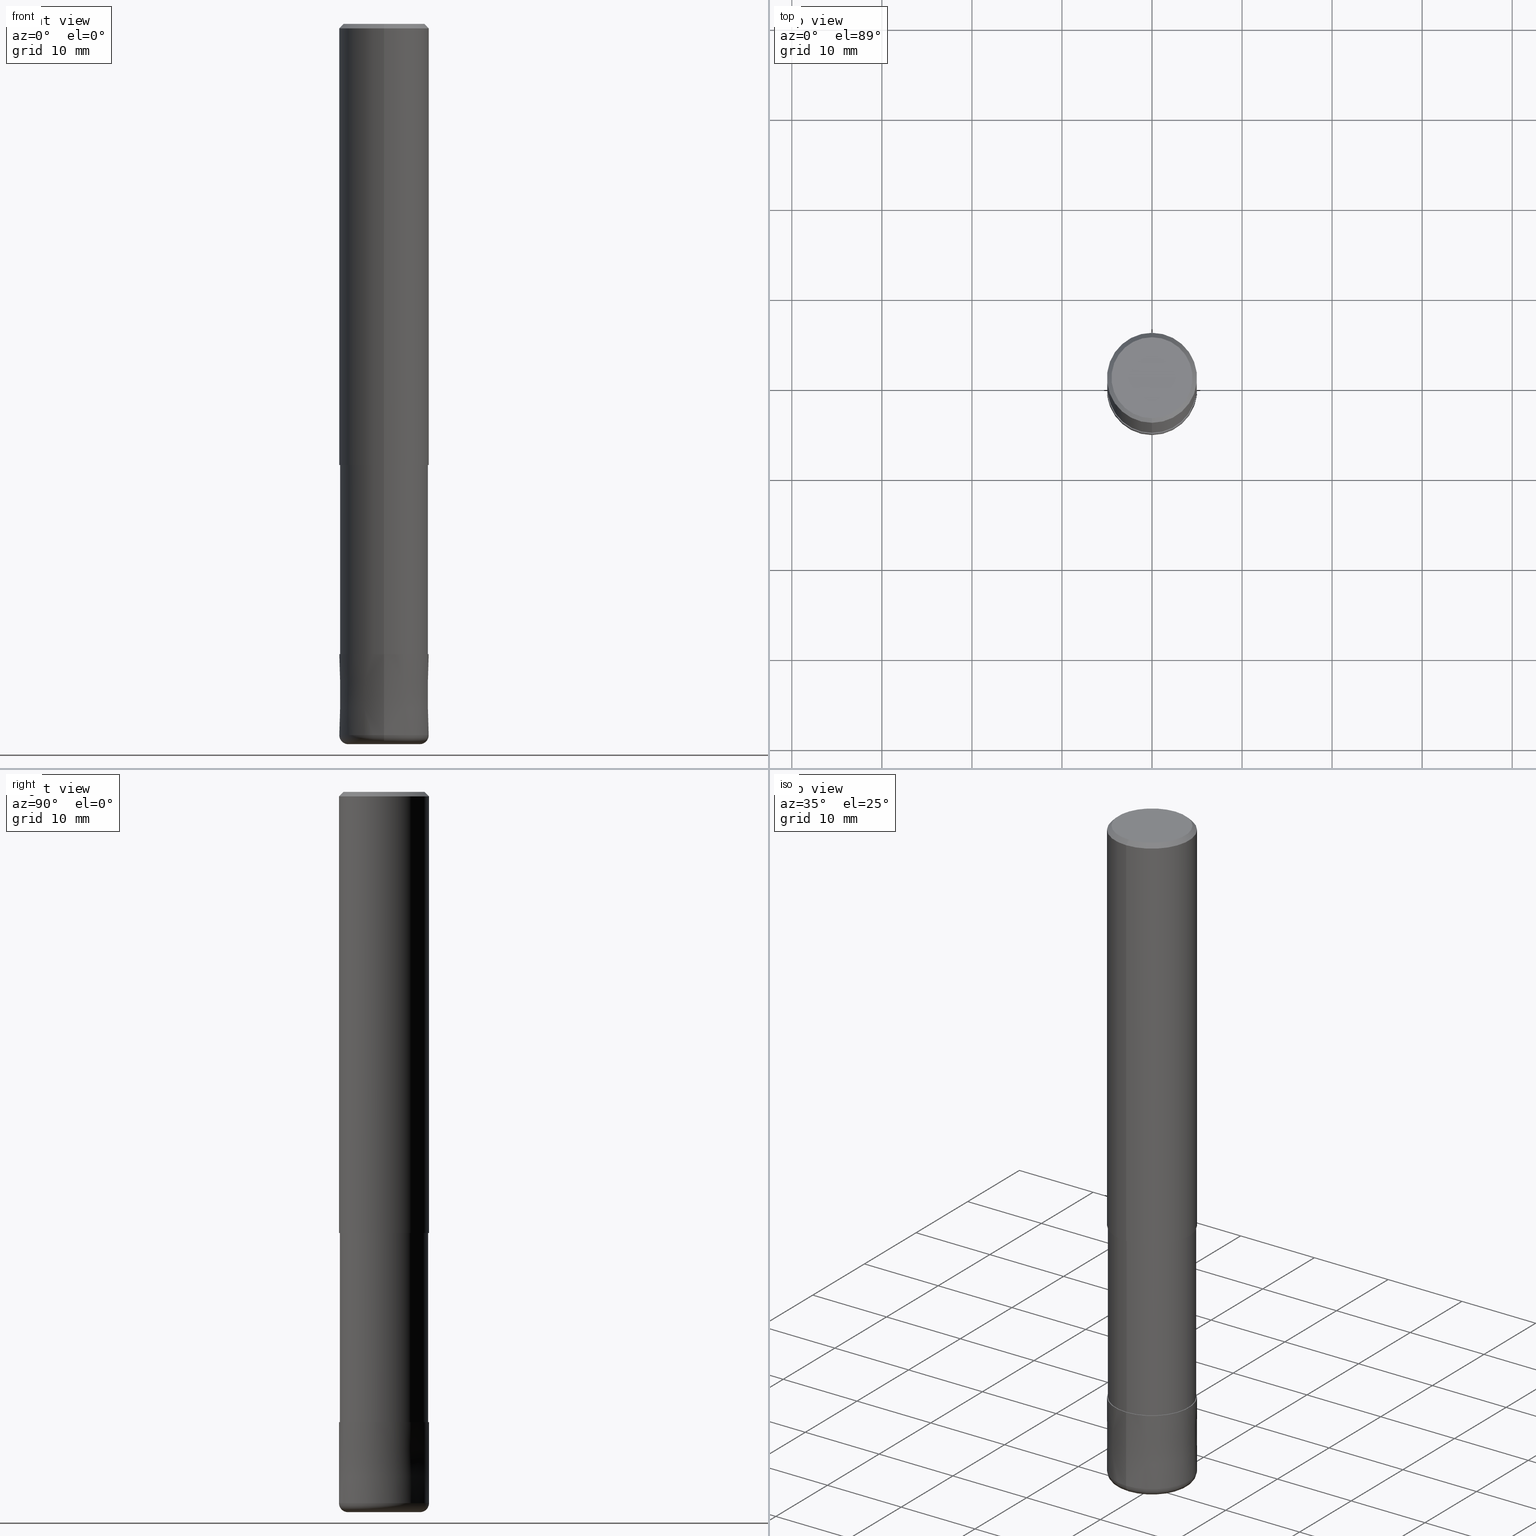
[diagram: canonical four-view strip — front | top / right | iso, engineering-drawing reading convention]
A machine part, canonical four-view strip (front | top / right | iso — engineering-drawing reading convention). The complete STEP part file that produces these views, byte-faithful:
ISO-10303-21;
HEADER;
FILE_DESCRIPTION(('no description'),'unknown implementation level');
FILE_NAME('HHRS6100-10-310-Huellk.stp','  ',('CIMSOURCE GmbH'),('CADClick - KiM GmbH - www.kimweb.de'),'unknown preprocess','ACIS','unknown authorization');
FILE_SCHEMA(('automotive_design'));
ENDSEC;
DATA;
#1=MECHANICAL_DESIGN_GEOMETRIC_PRESENTATION_REPRESENTATION(' ',(#14,#15,#16,#17,#18,#19,#20,#21,#22,#23,#24,#25,#26,#27,#28,#29,#30,#31,#32,#33,#34,#35,#36,#37,#38,#39,#40,#41,#42,#43,#44,#45,#46,#47,#48,#49,#50,#51,#52,#53,#54,#55,#56,#57,#58,#59,#60,#61,#62,#63,#64,#65,#66,#67,#68,#69,#70,#71,#72,#73,#74,#75,#76,#77,#78,#79,#80,#81,#82,#83,#84,#85,#86,#87,#88,#89,#90,#91,#92,#93,#94,#95,#96,#97),#10);
#2=PRODUCT_DEFINITION_CONTEXT('',#98,'design');
#3=APPLICATION_PROTOCOL_DEFINITION('INTERNATIONAL STANDARD','automotive_design',1994,#98);
#4=PRODUCT_CATEGORY_RELATIONSHIP('NONE','NONE',#99,#100);
#5=SHAPE_DEFINITION_REPRESENTATION(#101,#102);
#6=PRODUCT_DEFINITION_CONTEXT('',#103,'design');
#7=APPLICATION_PROTOCOL_DEFINITION('INTERNATIONAL STANDARD','automotive_design',1994,#103);
#8=PRODUCT_CATEGORY_RELATIONSHIP('NONE','NONE',#104,#105);
#9=SHAPE_DEFINITION_REPRESENTATION(#106,#107);
#10= (GEOMETRIC_REPRESENTATION_CONTEXT(3)GLOBAL_UNCERTAINTY_ASSIGNED_CONTEXT((#110))GLOBAL_UNIT_ASSIGNED_CONTEXT((#112,#113,#114))REPRESENTATION_CONTEXT('NONE','WORKSPACE'));
#14=STYLED_ITEM('',(#116),#117);
#15=STYLED_ITEM('',(#118),#119);
#16=STYLED_ITEM('',(#120),#121);
#17=STYLED_ITEM('',(#122),#123);
#18=STYLED_ITEM('',(#124),#125);
#19=STYLED_ITEM('',(#126),#127);
#20=STYLED_ITEM('',(#128),#129);
#21=STYLED_ITEM('',(#130),#131);
#22=STYLED_ITEM('',(#132),#133);
#23=STYLED_ITEM('',(#134),#135);
#24=STYLED_ITEM('',(#136),#137);
#25=STYLED_ITEM('',(#138),#139);
#26=STYLED_ITEM('',(#140),#141);
#27=STYLED_ITEM('',(#142),#143);
#28=STYLED_ITEM('',(#144),#145);
#29=STYLED_ITEM('',(#146),#147);
#30=STYLED_ITEM('',(#148),#149);
#31=STYLED_ITEM('',(#150),#151);
#32=STYLED_ITEM('',(#152),#153);
#33=STYLED_ITEM('',(#154),#155);
#34=STYLED_ITEM('',(#156),#157);
#35=STYLED_ITEM('',(#158),#159);
#36=STYLED_ITEM('',(#160),#161);
#37=STYLED_ITEM('',(#162),#163);
#38=STYLED_ITEM('',(#164),#165);
#39=STYLED_ITEM('',(#166),#167);
#40=STYLED_ITEM('',(#168),#169);
#41=STYLED_ITEM('',(#170),#171);
#42=STYLED_ITEM('',(#172),#173);
#43=STYLED_ITEM('',(#174),#175);
#44=STYLED_ITEM('',(#176),#177);
#45=STYLED_ITEM('',(#178),#179);
#46=STYLED_ITEM('',(#180),#181);
#47=STYLED_ITEM('',(#182),#183);
#48=STYLED_ITEM('',(#184),#185);
#49=STYLED_ITEM('',(#186),#187);
#50=STYLED_ITEM('',(#188),#189);
#51=STYLED_ITEM('',(#190),#191);
#52=STYLED_ITEM('',(#192),#193);
#53=STYLED_ITEM('',(#194),#195);
#54=STYLED_ITEM('',(#196),#197);
#55=STYLED_ITEM('',(#198),#199);
#56=STYLED_ITEM('',(#200),#201);
#57=STYLED_ITEM('',(#202),#203);
#58=STYLED_ITEM('',(#204),#205);
#59=STYLED_ITEM('',(#206),#207);
#60=STYLED_ITEM('',(#208),#209);
#61=STYLED_ITEM('',(#210),#211);
#62=STYLED_ITEM('',(#212),#213);
#63=STYLED_ITEM('',(#214),#215);
#64=STYLED_ITEM('',(#216),#217);
#65=STYLED_ITEM('',(#218),#219);
#66=STYLED_ITEM('',(#220),#221);
#67=STYLED_ITEM('',(#222),#223);
#68=STYLED_ITEM('',(#224),#225);
#69=STYLED_ITEM('',(#226),#227);
#70=STYLED_ITEM('',(#228),#229);
#71=STYLED_ITEM('',(#230),#231);
#72=STYLED_ITEM('',(#232),#233);
#73=STYLED_ITEM('',(#234),#235);
#74=STYLED_ITEM('',(#236),#237);
#75=STYLED_ITEM('',(#238),#239);
#76=STYLED_ITEM('',(#240),#241);
#77=STYLED_ITEM('',(#242),#243);
#78=STYLED_ITEM('',(#244),#245);
#79=STYLED_ITEM('',(#246),#247);
#80=STYLED_ITEM('',(#248),#249);
#81=STYLED_ITEM('',(#250),#251);
#82=STYLED_ITEM('',(#252),#253);
#83=STYLED_ITEM('',(#254),#255);
#84=STYLED_ITEM('',(#256),#257);
#85=STYLED_ITEM('',(#258),#259);
#86=STYLED_ITEM('',(#260),#261);
#87=STYLED_ITEM('',(#262),#263);
#88=STYLED_ITEM('',(#264),#265);
#89=STYLED_ITEM('',(#266),#267);
#90=STYLED_ITEM('',(#268),#269);
#91=STYLED_ITEM('',(#270),#271);
#92=STYLED_ITEM('',(#272),#273);
#93=STYLED_ITEM('',(#274),#275);
#94=STYLED_ITEM('',(#276),#277);
#95=STYLED_ITEM('',(#278),#279);
#96=STYLED_ITEM('',(#280),#281);
#97=STYLED_ITEM('',(#282),#283);
#98=APPLICATION_CONTEXT(' ');
#99=PRODUCT_CATEGORY('part','NONE');
#100=PRODUCT_RELATED_PRODUCT_CATEGORY('detail',' ',(#284));
#101=PRODUCT_DEFINITION_SHAPE('NONE','NONE',#285);
#102=ADVANCED_BREP_SHAPE_REPRESENTATION('1',(#273,#286),#10);
#103=APPLICATION_CONTEXT(' ');
#104=PRODUCT_CATEGORY('part','NONE');
#105=PRODUCT_RELATED_PRODUCT_CATEGORY('detail',' ',(#287));
#106=PRODUCT_DEFINITION_SHAPE('NONE','NONE',#288);
#107=ADVANCED_BREP_SHAPE_REPRESENTATION('2',(#221,#289),#10);
#110=UNCERTAINTY_MEASURE_WITH_UNIT(LENGTH_MEASURE(1.0E-006),#112,'','');
#112= (CONVERSION_BASED_UNIT('MILLIMETRE',#292)LENGTH_UNIT()NAMED_UNIT(#295));
#113= (NAMED_UNIT(#297)PLANE_ANGLE_UNIT()SI_UNIT($,.RADIAN.));
#114= (NAMED_UNIT(#297)SOLID_ANGLE_UNIT()SI_UNIT($,.STERADIAN.));
#116=PRESENTATION_STYLE_ASSIGNMENT((#303));
#117=EDGE_CURVE('',#225,#193,#304,.T.);
#118=PRESENTATION_STYLE_ASSIGNMENT((#305));
#119=EDGE_CURVE('',#207,#227,#306,.T.);
#120=PRESENTATION_STYLE_ASSIGNMENT((#307));
#121=VERTEX_POINT('',#308);
#122=PRESENTATION_STYLE_ASSIGNMENT((#309));
#123=ADVANCED_FACE('',(#310),#311,.T.);
#124=PRESENTATION_STYLE_ASSIGNMENT((#312));
#125=ADVANCED_FACE('',(#313),#314,.T.);
#126=PRESENTATION_STYLE_ASSIGNMENT((#315));
#127=VERTEX_POINT('',#316);
#128=PRESENTATION_STYLE_ASSIGNMENT((#317));
#129=EDGE_CURVE('',#161,#127,#318,.T.);
#130=PRESENTATION_STYLE_ASSIGNMENT((#319));
#131=EDGE_CURVE('',#231,#167,#320,.T.);
#132=PRESENTATION_STYLE_ASSIGNMENT((#321));
#133=VERTEX_POINT('',#322);
#134=PRESENTATION_STYLE_ASSIGNMENT((#323));
#135=ADVANCED_FACE('',(#324),#325,.T.);
#136=PRESENTATION_STYLE_ASSIGNMENT((#326));
#137=ADVANCED_FACE('',(#327),#328,.T.);
#138=PRESENTATION_STYLE_ASSIGNMENT((#329));
#139=EDGE_CURVE('',#193,#225,#330,.T.);
#140=PRESENTATION_STYLE_ASSIGNMENT((#331));
#141=EDGE_CURVE('',#277,#265,#332,.T.);
#142=PRESENTATION_STYLE_ASSIGNMENT((#333));
#143=EDGE_CURVE('',#241,#271,#334,.T.);
#144=PRESENTATION_STYLE_ASSIGNMENT((#335));
#145=ADVANCED_FACE('',(#336,#337),#338,.T.);
#146=PRESENTATION_STYLE_ASSIGNMENT((#339));
#147=EDGE_CURVE('',#155,#263,#340,.T.);
#148=PRESENTATION_STYLE_ASSIGNMENT((#341));
#149=EDGE_CURVE('',#255,#265,#342,.T.);
#150=PRESENTATION_STYLE_ASSIGNMENT((#343));
#151=ADVANCED_FACE('',(#344),#345,.T.);
#152=PRESENTATION_STYLE_ASSIGNMENT((#346));
#153=EDGE_CURVE('',#225,#205,#347,.T.);
#154=PRESENTATION_STYLE_ASSIGNMENT((#348));
#155=VERTEX_POINT('',#349);
#156=PRESENTATION_STYLE_ASSIGNMENT((#350));
#157=ADVANCED_FACE('',(#351),#352,.F.);
#158=PRESENTATION_STYLE_ASSIGNMENT((#353));
#159=ADVANCED_FACE('',(#354),#355,.T.);
#160=PRESENTATION_STYLE_ASSIGNMENT((#356));
#161=VERTEX_POINT('',#357);
#162=PRESENTATION_STYLE_ASSIGNMENT((#358));
#163=ADVANCED_FACE('',(#359),#360,.T.);
#164=PRESENTATION_STYLE_ASSIGNMENT((#361));
#165=EDGE_CURVE('',#209,#121,#362,.T.);
#166=PRESENTATION_STYLE_ASSIGNMENT((#363));
#167=VERTEX_POINT('',#364);
#168=PRESENTATION_STYLE_ASSIGNMENT((#365));
#169=ADVANCED_FACE('',(#366),#367,.T.);
#170=PRESENTATION_STYLE_ASSIGNMENT((#368));
#171=EDGE_CURVE('',#167,#231,#369,.T.);
#172=PRESENTATION_STYLE_ASSIGNMENT((#370));
#173=EDGE_CURVE('',#227,#207,#371,.T.);
#174=PRESENTATION_STYLE_ASSIGNMENT((#372));
#175=EDGE_CURVE('',#263,#155,#373,.T.);
#176=PRESENTATION_STYLE_ASSIGNMENT((#374));
#177=EDGE_CURVE('',#271,#185,#375,.T.);
#178=PRESENTATION_STYLE_ASSIGNMENT((#376));
#179=VERTEX_POINT('',#377);
#180=PRESENTATION_STYLE_ASSIGNMENT((#378));
#181=EDGE_CURVE('',#179,#185,#379,.T.);
#182=PRESENTATION_STYLE_ASSIGNMENT((#380));
#183=EDGE_CURVE('',#253,#269,#381,.T.);
#184=PRESENTATION_STYLE_ASSIGNMENT((#382));
#185=VERTEX_POINT('',#383);
#186=PRESENTATION_STYLE_ASSIGNMENT((#384));
#187=EDGE_CURVE('',#207,#155,#385,.T.);
#188=PRESENTATION_STYLE_ASSIGNMENT((#386));
#189=ADVANCED_FACE('',(#387,#388),#389,.T.);
#190=PRESENTATION_STYLE_ASSIGNMENT((#390));
#191=ADVANCED_FACE('',(#391,#392),#393,.T.);
#192=PRESENTATION_STYLE_ASSIGNMENT((#394));
#193=VERTEX_POINT('',#395);
#194=PRESENTATION_STYLE_ASSIGNMENT((#396));
#195=ADVANCED_FACE('',(#397),#398,.T.);
#196=PRESENTATION_STYLE_ASSIGNMENT((#399));
#197=EDGE_CURVE('',#231,#209,#400,.T.);
#198=PRESENTATION_STYLE_ASSIGNMENT((#401));
#199=ADVANCED_FACE('',(#402),#403,.T.);
#200=PRESENTATION_STYLE_ASSIGNMENT((#404));
#201=EDGE_CURVE('',#263,#227,#405,.T.);
#202=PRESENTATION_STYLE_ASSIGNMENT((#406));
#203=EDGE_CURVE('',#121,#209,#407,.T.);
#204=PRESENTATION_STYLE_ASSIGNMENT((#408));
#205=VERTEX_POINT('',#409);
#206=PRESENTATION_STYLE_ASSIGNMENT((#410));
#207=VERTEX_POINT('',#411);
#208=PRESENTATION_STYLE_ASSIGNMENT((#412));
#209=VERTEX_POINT('',#413);
#210=PRESENTATION_STYLE_ASSIGNMENT((#414));
#211=EDGE_CURVE('',#205,#133,#415,.T.);
#212=PRESENTATION_STYLE_ASSIGNMENT((#416));
#213=EDGE_CURVE('',#277,#283,#417,.T.);
#214=PRESENTATION_STYLE_ASSIGNMENT((#418));
#215=ADVANCED_FACE('',(#419,#420),#421,.T.);
#216=PRESENTATION_STYLE_ASSIGNMENT((#422));
#217=ADVANCED_FACE('',(#423),#424,.T.);
#218=PRESENTATION_STYLE_ASSIGNMENT((#425));
#219=EDGE_CURVE('',#271,#241,#426,.T.);
#220=PRESENTATION_STYLE_ASSIGNMENT((#427));
#221=MANIFOLD_SOLID_BREP('2',#428);
#222=PRESENTATION_STYLE_ASSIGNMENT((#429));
#223=EDGE_CURVE('',#185,#179,#430,.T.);
#224=PRESENTATION_STYLE_ASSIGNMENT((#431));
#225=VERTEX_POINT('',#432);
#226=PRESENTATION_STYLE_ASSIGNMENT((#433));
#227=VERTEX_POINT('',#434);
#228=PRESENTATION_STYLE_ASSIGNMENT((#435));
#229=EDGE_CURVE('',#269,#253,#436,.T.);
#230=PRESENTATION_STYLE_ASSIGNMENT((#437));
#231=VERTEX_POINT('',#438);
#232=PRESENTATION_STYLE_ASSIGNMENT((#439));
#233=EDGE_CURVE('',#283,#277,#440,.T.);
#234=PRESENTATION_STYLE_ASSIGNMENT((#441));
#235=EDGE_CURVE('',#127,#161,#442,.T.);
#236=PRESENTATION_STYLE_ASSIGNMENT((#443));
#237=ADVANCED_FACE('',(#444),#445,.T.);
#238=PRESENTATION_STYLE_ASSIGNMENT((#446));
#239=EDGE_CURVE('',#121,#167,#447,.T.);
#240=PRESENTATION_STYLE_ASSIGNMENT((#448));
#241=VERTEX_POINT('',#449);
#242=PRESENTATION_STYLE_ASSIGNMENT((#450));
#243=ADVANCED_FACE('',(#451),#452,.T.);
#244=PRESENTATION_STYLE_ASSIGNMENT((#453));
#245=EDGE_CURVE('',#127,#241,#454,.T.);
#246=PRESENTATION_STYLE_ASSIGNMENT((#455));
#247=ADVANCED_FACE('',(#456),#457,.T.);
#248=PRESENTATION_STYLE_ASSIGNMENT((#458));
#249=EDGE_CURVE('',#133,#205,#459,.T.);
#250=PRESENTATION_STYLE_ASSIGNMENT((#460));
#251=EDGE_CURVE('',#133,#193,#461,.T.);
#252=PRESENTATION_STYLE_ASSIGNMENT((#462));
#253=VERTEX_POINT('',#463);
#254=PRESENTATION_STYLE_ASSIGNMENT((#464));
#255=VERTEX_POINT('',#465);
#256=PRESENTATION_STYLE_ASSIGNMENT((#466));
#257=EDGE_CURVE('',#253,#121,#467,.T.);
#258=PRESENTATION_STYLE_ASSIGNMENT((#468));
#259=EDGE_CURVE('',#179,#241,#469,.T.);
#260=PRESENTATION_STYLE_ASSIGNMENT((#470));
#261=EDGE_CURVE('',#255,#283,#471,.T.);
#262=PRESENTATION_STYLE_ASSIGNMENT((#472));
#263=VERTEX_POINT('',#473);
#264=PRESENTATION_STYLE_ASSIGNMENT((#474));
#265=VERTEX_POINT('',#475);
#266=PRESENTATION_STYLE_ASSIGNMENT((#476));
#267=EDGE_CURVE('',#209,#269,#477,.T.);
#268=PRESENTATION_STYLE_ASSIGNMENT((#478));
#269=VERTEX_POINT('',#479);
#270=PRESENTATION_STYLE_ASSIGNMENT((#480));
#271=VERTEX_POINT('',#481);
#272=PRESENTATION_STYLE_ASSIGNMENT((#482));
#273=MANIFOLD_SOLID_BREP('1',#483);
#274=PRESENTATION_STYLE_ASSIGNMENT((#484));
#275=EDGE_CURVE('',#265,#255,#485,.T.);
#276=PRESENTATION_STYLE_ASSIGNMENT((#486));
#277=VERTEX_POINT('',#487);
#278=PRESENTATION_STYLE_ASSIGNMENT((#488));
#279=EDGE_CURVE('',#271,#161,#489,.T.);
#280=PRESENTATION_STYLE_ASSIGNMENT((#490));
#281=ADVANCED_FACE('',(#491),#492,.F.);
#282=PRESENTATION_STYLE_ASSIGNMENT((#493));
#283=VERTEX_POINT('',#494);
#284=PRODUCT('1','1','PART-1-DESC',(#495));
#285=PRODUCT_DEFINITION('NONE','NONE',#496,#2);
#286=AXIS2_PLACEMENT_3D('',#497,#498,#499);
#287=PRODUCT('2','2','PART-2-DESC',(#500));
#288=PRODUCT_DEFINITION('NONE','NONE',#501,#6);
#289=AXIS2_PLACEMENT_3D('',#502,#503,#504);
#292=LENGTH_MEASURE_WITH_UNIT(LENGTH_MEASURE(1.0),#505);
#295=DIMENSIONAL_EXPONENTS(1.0,0.0,0.0,0.0,0.0,0.0,0.0);
#297=DIMENSIONAL_EXPONENTS(0.0,0.0,0.0,0.0,0.0,0.0,0.0);
#303=CURVE_STYLE('',#506,POSITIVE_LENGTH_MEASURE(1.0E-006),#507);
#304=CIRCLE('',#508,4.90495);
#305=CURVE_STYLE('',#509,POSITIVE_LENGTH_MEASURE(1.0E-006),#510);
#306=CIRCLE('',#511,2.25);
#307=POINT_STYLE(' ',#512,POSITIVE_LENGTH_MEASURE(1.0E-006),#513);
#308=CARTESIAN_POINT('',(6.12303176911189E-016,-5.0,-0.5));
#309=SURFACE_STYLE_USAGE(.BOTH.,#514);
#310=FACE_OUTER_BOUND('',#515,.T.);
#311=TOROIDAL_SURFACE('',#516,4.0,1.0);
#312=SURFACE_STYLE_USAGE(.BOTH.,#517);
#313=FACE_OUTER_BOUND('',#518,.T.);
#314=CYLINDRICAL_SURFACE('',#519,5.0);
#315=POINT_STYLE(' ',#520,POSITIVE_LENGTH_MEASURE(1.0E-006),#521);
#316=CARTESIAN_POINT('',(0.0,4.9999,-70.0));
#317=CURVE_STYLE('',#522,POSITIVE_LENGTH_MEASURE(1.0E-006),#523);
#318=CIRCLE('',#524,4.9999);
#319=CURVE_STYLE('',#525,POSITIVE_LENGTH_MEASURE(1.0E-006),#526);
#320=CIRCLE('',#527,4.5);
#321=POINT_STYLE(' ',#528,POSITIVE_LENGTH_MEASURE(1.0E-006),#529);
#322=CARTESIAN_POINT('',(0.0,4.90495,-49.0));
#323=SURFACE_STYLE_USAGE(.BOTH.,#530);
#324=FACE_OUTER_BOUND('',#531,.T.);
#325=PLANE('',#532);
#326=SURFACE_STYLE_USAGE(.BOTH.,#533);
#327=FACE_OUTER_BOUND('',#534,.T.);
#328=CYLINDRICAL_SURFACE('',#535,5.0);
#329=CURVE_STYLE('',#536,POSITIVE_LENGTH_MEASURE(1.0E-006),#537);
#330=CIRCLE('',#538,4.90495);
#331=CURVE_STYLE('',#539,POSITIVE_LENGTH_MEASURE(1.0E-006),#540);
#332=LINE('',#541,#542);
#333=CURVE_STYLE('',#543,POSITIVE_LENGTH_MEASURE(1.0E-006),#544);
#334=CIRCLE('',#545,5.0);
#335=SURFACE_STYLE_USAGE(.BOTH.,#546);
#336=FACE_BOUND('',#547,.T.);
#337=FACE_OUTER_BOUND('',#548,.T.);
#338=PLANE('',#549);
#339=CURVE_STYLE('',#550,POSITIVE_LENGTH_MEASURE(1.0E-006),#551);
#340=CIRCLE('',#552,2.25);
#341=CURVE_STYLE('',#553,POSITIVE_LENGTH_MEASURE(1.0E-006),#554);
#342=CIRCLE('',#555,2.25);
#343=SURFACE_STYLE_USAGE(.BOTH.,#556);
#344=FACE_OUTER_BOUND('',#557,.T.);
#345=PLANE('',#558);
#346=CURVE_STYLE('',#559,POSITIVE_LENGTH_MEASURE(1.0E-006),#560);
#347=LINE('',#561,#562);
#348=POINT_STYLE(' ',#563,POSITIVE_LENGTH_MEASURE(1.0E-006),#564);
#349=CARTESIAN_POINT('',(0.0,2.25,-79.8));
#350=SURFACE_STYLE_USAGE(.BOTH.,#565);
#351=FACE_OUTER_BOUND('',#566,.T.);
#352=CYLINDRICAL_SURFACE('',#567,2.25);
#353=SURFACE_STYLE_USAGE(.BOTH.,#568);
#354=FACE_OUTER_BOUND('',#569,.T.);
#355=TOROIDAL_SURFACE('',#570,4.0,1.0);
#356=POINT_STYLE(' ',#571,POSITIVE_LENGTH_MEASURE(1.0E-006),#572);
#357=CARTESIAN_POINT('',(6.1229093084765E-016,-4.9999,-70.0));
#358=SURFACE_STYLE_USAGE(.BOTH.,#573);
#359=FACE_OUTER_BOUND('',#574,.T.);
#360=CONICAL_SURFACE('',#575,4.75,0.785398163397448);
#361=CURVE_STYLE('',#576,POSITIVE_LENGTH_MEASURE(1.0E-006),#577);
#362=CIRCLE('',#578,5.0);
#363=POINT_STYLE(' ',#579,POSITIVE_LENGTH_MEASURE(1.0E-006),#580);
#364=CARTESIAN_POINT('',(5.5107285922007E-016,-4.5,0.0));
#365=SURFACE_STYLE_USAGE(.BOTH.,#581);
#366=FACE_OUTER_BOUND('',#582,.T.);
#367=CYLINDRICAL_SURFACE('',#583,2.25);
#368=CURVE_STYLE('',#584,POSITIVE_LENGTH_MEASURE(1.0E-006),#585);
#369=CIRCLE('',#586,4.5);
#370=CURVE_STYLE('',#587,POSITIVE_LENGTH_MEASURE(1.0E-006),#588);
#371=CIRCLE('',#589,2.25);
#372=CURVE_STYLE('',#590,POSITIVE_LENGTH_MEASURE(1.0E-006),#591);
#373=CIRCLE('',#592,2.25);
#374=CURVE_STYLE('',#593,POSITIVE_LENGTH_MEASURE(1.0E-006),#594);
#375=CIRCLE('',#595,1.0);
#376=POINT_STYLE(' ',#596,POSITIVE_LENGTH_MEASURE(1.0E-006),#597);
#377=CARTESIAN_POINT('',(0.0,4.0,-80.0));
#378=CURVE_STYLE('',#598,POSITIVE_LENGTH_MEASURE(1.0E-006),#599);
#379=CIRCLE('',#600,4.0);
#380=CURVE_STYLE('',#601,POSITIVE_LENGTH_MEASURE(1.0E-006),#602);
#381=CIRCLE('',#603,5.0);
#382=POINT_STYLE(' ',#604,POSITIVE_LENGTH_MEASURE(1.0E-006),#605);
#383=CARTESIAN_POINT('',(4.89842541528951E-016,-4.0,-80.0));
#384=CURVE_STYLE('',#606,POSITIVE_LENGTH_MEASURE(1.0E-006),#607);
#385=LINE('',#608,#609);
#386=SURFACE_STYLE_USAGE(.BOTH.,#610);
#387=FACE_OUTER_BOUND('',#611,.T.);
#388=FACE_BOUND('',#612,.T.);
#389=PLANE('',#613);
#390=SURFACE_STYLE_USAGE(.BOTH.,#614);
#391=FACE_BOUND('',#615,.T.);
#392=FACE_OUTER_BOUND('',#616,.T.);
#393=PLANE('',#617);
#394=POINT_STYLE(' ',#618,POSITIVE_LENGTH_MEASURE(1.0E-006),#619);
#395=CARTESIAN_POINT('',(0.0,4.90495,-70.0));
#396=SURFACE_STYLE_USAGE(.BOTH.,#620);
#397=FACE_OUTER_BOUND('',#621,.T.);
#398=CONICAL_SURFACE('',#622,4.99995,1.1111111110628E-005);
#399=CURVE_STYLE('',#623,POSITIVE_LENGTH_MEASURE(1.0E-006),#624);
#400=LINE('',#625,#626);
#401=SURFACE_STYLE_USAGE(.BOTH.,#627);
#402=FACE_OUTER_BOUND('',#628,.T.);
#403=CONICAL_SURFACE('',#629,4.99995,1.1111111110628E-005);
#404=CURVE_STYLE('',#630,POSITIVE_LENGTH_MEASURE(1.0E-006),#631);
#405=LINE('',#632,#633);
#406=CURVE_STYLE('',#634,POSITIVE_LENGTH_MEASURE(1.0E-006),#635);
#407=CIRCLE('',#636,5.0);
#408=POINT_STYLE(' ',#637,POSITIVE_LENGTH_MEASURE(1.0E-006),#638);
#409=CARTESIAN_POINT('',(6.00663293518107E-016,-4.90495,-49.0));
#410=POINT_STYLE(' ',#639,POSITIVE_LENGTH_MEASURE(1.0E-006),#640);
#411=CARTESIAN_POINT('',(0.0,2.25,-70.0));
#412=POINT_STYLE(' ',#641,POSITIVE_LENGTH_MEASURE(1.0E-006),#642);
#413=CARTESIAN_POINT('',(0.0,5.0,-0.5));
#414=CURVE_STYLE('',#643,POSITIVE_LENGTH_MEASURE(1.0E-006),#644);
#415=CIRCLE('',#645,4.90495);
#416=CURVE_STYLE('',#646,POSITIVE_LENGTH_MEASURE(1.0E-006),#647);
#417=CIRCLE('',#648,2.25);
#418=SURFACE_STYLE_USAGE(.BOTH.,#649);
#419=FACE_OUTER_BOUND('',#650,.T.);
#420=FACE_BOUND('',#651,.T.);
#421=PLANE('',#652);
#422=SURFACE_STYLE_USAGE(.BOTH.,#653);
#423=FACE_OUTER_BOUND('',#654,.T.);
#424=CONICAL_SURFACE('',#655,4.75,0.785398163397448);
#425=CURVE_STYLE('',#656,POSITIVE_LENGTH_MEASURE(1.0E-006),#657);
#426=CIRCLE('',#658,5.0);
#427=SURFACE_STYLE_USAGE(.BOTH.,#659);
#428=CLOSED_SHELL('',(#157,#159,#199,#189,#195,#123,#145,#281));
#429=CURVE_STYLE('',#660,POSITIVE_LENGTH_MEASURE(1.0E-006),#661);
#430=CIRCLE('',#662,4.0);
#431=POINT_STYLE(' ',#663,POSITIVE_LENGTH_MEASURE(1.0E-006),#664);
#432=CARTESIAN_POINT('',(6.00663293518107E-016,-4.90495,-70.0));
#433=POINT_STYLE(' ',#665,POSITIVE_LENGTH_MEASURE(1.0E-006),#666);
#434=CARTESIAN_POINT('',(2.75536429610035E-016,-2.25,-70.0));
#435=CURVE_STYLE('',#667,POSITIVE_LENGTH_MEASURE(1.0E-006),#668);
#436=CIRCLE('',#669,5.0);
#437=POINT_STYLE(' ',#670,POSITIVE_LENGTH_MEASURE(1.0E-006),#671);
#438=CARTESIAN_POINT('',(0.0,4.5,0.0));
#439=CURVE_STYLE('',#672,POSITIVE_LENGTH_MEASURE(1.0E-006),#673);
#440=CIRCLE('',#674,2.25);
#441=CURVE_STYLE('',#675,POSITIVE_LENGTH_MEASURE(1.0E-006),#676);
#442=CIRCLE('',#677,4.9999);
#443=SURFACE_STYLE_USAGE(.BOTH.,#678);
#444=FACE_OUTER_BOUND('',#679,.T.);
#445=CYLINDRICAL_SURFACE('',#680,4.90495);
#446=CURVE_STYLE('',#681,POSITIVE_LENGTH_MEASURE(1.0E-006),#682);
#447=LINE('',#683,#684);
#448=POINT_STYLE(' ',#685,POSITIVE_LENGTH_MEASURE(1.0E-006),#686);
#449=CARTESIAN_POINT('',(0.0,5.0,-79.0));
#450=SURFACE_STYLE_USAGE(.BOTH.,#687);
#451=FACE_OUTER_BOUND('',#688,.T.);
#452=CYLINDRICAL_SURFACE('',#689,2.25);
#453=CURVE_STYLE('',#690,POSITIVE_LENGTH_MEASURE(1.0E-006),#691);
#454=LINE('',#692,#693);
#455=SURFACE_STYLE_USAGE(.BOTH.,#694);
#456=FACE_OUTER_BOUND('',#695,.T.);
#457=CYLINDRICAL_SURFACE('',#696,4.90495);
#458=CURVE_STYLE('',#697,POSITIVE_LENGTH_MEASURE(1.0E-006),#698);
#459=CIRCLE('',#699,4.90495);
#460=CURVE_STYLE('',#700,POSITIVE_LENGTH_MEASURE(1.0E-006),#701);
#461=LINE('',#702,#703);
#462=POINT_STYLE(' ',#704,POSITIVE_LENGTH_MEASURE(1.0E-006),#705);
#463=CARTESIAN_POINT('',(6.12303176911189E-016,-5.0,-49.0));
#464=POINT_STYLE(' ',#706,POSITIVE_LENGTH_MEASURE(1.0E-006),#707);
#465=CARTESIAN_POINT('',(2.75536429610035E-016,-2.25,-80.0));
#466=CURVE_STYLE('',#708,POSITIVE_LENGTH_MEASURE(1.0E-006),#709);
#467=LINE('',#710,#711);
#468=CURVE_STYLE('',#712,POSITIVE_LENGTH_MEASURE(1.0E-006),#713);
#469=CIRCLE('',#714,1.0);
#470=CURVE_STYLE('',#715,POSITIVE_LENGTH_MEASURE(1.0E-006),#716);
#471=LINE('',#717,#718);
#472=POINT_STYLE(' ',#719,POSITIVE_LENGTH_MEASURE(1.0E-006),#720);
#473=CARTESIAN_POINT('',(2.75536429610035E-016,-2.25,-79.8));
#474=POINT_STYLE(' ',#721,POSITIVE_LENGTH_MEASURE(1.0E-006),#722);
#475=CARTESIAN_POINT('',(0.0,2.25,-80.0));
#476=CURVE_STYLE('',#723,POSITIVE_LENGTH_MEASURE(1.0E-006),#724);
#477=LINE('',#725,#726);
#478=POINT_STYLE(' ',#727,POSITIVE_LENGTH_MEASURE(1.0E-006),#728);
#479=CARTESIAN_POINT('',(0.0,5.0,-49.0));
#480=POINT_STYLE(' ',#729,POSITIVE_LENGTH_MEASURE(1.0E-006),#730);
#481=CARTESIAN_POINT('',(6.12303176911189E-016,-5.0,-79.0));
#482=SURFACE_STYLE_USAGE(.BOTH.,#731);
#483=CLOSED_SHELL('',(#169,#247,#125,#217,#215,#135,#163,#137,#237,#191,#243,#151));
#484=CURVE_STYLE('',#732,POSITIVE_LENGTH_MEASURE(1.0E-006),#733);
#485=CIRCLE('',#734,2.25);
#486=POINT_STYLE(' ',#735,POSITIVE_LENGTH_MEASURE(1.0E-006),#736);
#487=CARTESIAN_POINT('',(0.0,2.25,-70.0));
#488=CURVE_STYLE('',#737,POSITIVE_LENGTH_MEASURE(1.0E-006),#738);
#489=LINE('',#739,#740);
#490=SURFACE_STYLE_USAGE(.BOTH.,#741);
#491=FACE_OUTER_BOUND('',#742,.T.);
#492=CYLINDRICAL_SURFACE('',#743,2.25);
#493=POINT_STYLE(' ',#744,POSITIVE_LENGTH_MEASURE(1.0E-006),#745);
#494=CARTESIAN_POINT('',(2.75536429610035E-016,-2.25,-70.0));
#495=PRODUCT_CONTEXT('',#98,'mechanical');
#496=PRODUCT_DEFINITION_FORMATION_WITH_SPECIFIED_SOURCE(' ','NONE',#284,.NOT_KNOWN.);
#497=CARTESIAN_POINT('',(0.0,0.0,0.0));
#498=DIRECTION('',(0.0,0.0,1.0));
#499=DIRECTION('',(1.0,0.0,0.0));
#500=PRODUCT_CONTEXT('',#103,'mechanical');
#501=PRODUCT_DEFINITION_FORMATION_WITH_SPECIFIED_SOURCE(' ','NONE',#287,.NOT_KNOWN.);
#502=CARTESIAN_POINT('',(0.0,0.0,0.0));
#503=DIRECTION('',(0.0,0.0,1.0));
#504=DIRECTION('',(1.0,0.0,0.0));
#505= (NAMED_UNIT(#295)LENGTH_UNIT()SI_UNIT(.MILLI.,.METRE.));
#506=DRAUGHTING_PRE_DEFINED_CURVE_FONT('continuous');
#507=COLOUR_RGB('',0.498039215803146,0.498039215803146,0.498039215803146);
#508=AXIS2_PLACEMENT_3D('',#747,#748,#749);
#509=DRAUGHTING_PRE_DEFINED_CURVE_FONT('continuous');
#510=COLOUR_RGB('',0.498039215803146,0.498039215803146,0.498039215803146);
#511=AXIS2_PLACEMENT_3D('',#750,#751,#752);
#512=PRE_DEFINED_MARKER('');
#513=COLOUR_RGB('',0.498039215803146,0.498039215803146,0.498039215803146);
#514=SURFACE_SIDE_STYLE('',(#753));
#515=EDGE_LOOP('',(#754,#755,#756,#757));
#516=AXIS2_PLACEMENT_3D('',#758,#759,#760);
#517=SURFACE_SIDE_STYLE('',(#761));
#518=EDGE_LOOP('',(#762,#763,#764,#765));
#519=AXIS2_PLACEMENT_3D('',#766,#767,#768);
#520=PRE_DEFINED_MARKER('');
#521=COLOUR_RGB('',0.800000011920929,0.800000011920929,0.800000011920929);
#522=DRAUGHTING_PRE_DEFINED_CURVE_FONT('continuous');
#523=COLOUR_RGB('',0.800000011920929,0.800000011920929,0.800000011920929);
#524=AXIS2_PLACEMENT_3D('',#769,#770,#771);
#525=DRAUGHTING_PRE_DEFINED_CURVE_FONT('continuous');
#526=COLOUR_RGB('',0.498039215803146,0.498039215803146,0.498039215803146);
#527=AXIS2_PLACEMENT_3D('',#772,#773,#774);
#528=PRE_DEFINED_MARKER('');
#529=COLOUR_RGB('',0.498039215803146,0.498039215803146,0.498039215803146);
#530=SURFACE_SIDE_STYLE('',(#775));
#531=EDGE_LOOP('',(#776,#777));
#532=AXIS2_PLACEMENT_3D('',#778,#779,#780);
#533=SURFACE_SIDE_STYLE('',(#781));
#534=EDGE_LOOP('',(#782,#783,#784,#785));
#535=AXIS2_PLACEMENT_3D('',#786,#787,#788);
#536=DRAUGHTING_PRE_DEFINED_CURVE_FONT('continuous');
#537=COLOUR_RGB('',0.498039215803146,0.498039215803146,0.498039215803146);
#538=AXIS2_PLACEMENT_3D('',#789,#790,#791);
#539=DRAUGHTING_PRE_DEFINED_CURVE_FONT('continuous');
#540=COLOUR_RGB('',0.800000011920929,0.800000011920929,0.800000011920929);
#541=CARTESIAN_POINT('',(-2.75536429610035E-016,2.25,-75.0));
#542=VECTOR('',#792,1.0);
#543=DRAUGHTING_PRE_DEFINED_CURVE_FONT('continuous');
#544=COLOUR_RGB('',0.800000011920929,0.800000011920929,0.800000011920929);
#545=AXIS2_PLACEMENT_3D('',#793,#794,#795);
#546=SURFACE_SIDE_STYLE('',(#796));
#547=EDGE_LOOP('',(#797,#798));
#548=EDGE_LOOP('',(#799,#800));
#549=AXIS2_PLACEMENT_3D('',#801,#802,#803);
#550=DRAUGHTING_PRE_DEFINED_CURVE_FONT('continuous');
#551=COLOUR_RGB('',0.498039215803146,0.498039215803146,0.498039215803146);
#552=AXIS2_PLACEMENT_3D('',#804,#805,#806);
#553=DRAUGHTING_PRE_DEFINED_CURVE_FONT('continuous');
#554=COLOUR_RGB('',0.800000011920929,0.800000011920929,0.800000011920929);
#555=AXIS2_PLACEMENT_3D('',#807,#808,#809);
#556=SURFACE_SIDE_STYLE('',(#810));
#557=EDGE_LOOP('',(#811,#812));
#558=AXIS2_PLACEMENT_3D('',#813,#814,#815);
#559=DRAUGHTING_PRE_DEFINED_CURVE_FONT('continuous');
#560=COLOUR_RGB('',0.498039215803146,0.498039215803146,0.498039215803146);
#561=CARTESIAN_POINT('',(6.00663293518107E-016,-4.90495,-59.5));
#562=VECTOR('',#816,1.0);
#563=PRE_DEFINED_MARKER('');
#564=COLOUR_RGB('',0.498039215803146,0.498039215803146,0.498039215803146);
#565=SURFACE_SIDE_STYLE('',(#817));
#566=EDGE_LOOP('',(#818,#819,#820,#821));
#567=AXIS2_PLACEMENT_3D('',#822,#823,#824);
#568=SURFACE_SIDE_STYLE('',(#825));
#569=EDGE_LOOP('',(#826,#827,#828,#829));
#570=AXIS2_PLACEMENT_3D('',#830,#831,#832);
#571=PRE_DEFINED_MARKER('');
#572=COLOUR_RGB('',0.800000011920929,0.800000011920929,0.800000011920929);
#573=SURFACE_SIDE_STYLE('',(#833));
#574=EDGE_LOOP('',(#834,#835,#836,#837));
#575=AXIS2_PLACEMENT_3D('',#838,#839,#840);
#576=DRAUGHTING_PRE_DEFINED_CURVE_FONT('continuous');
#577=COLOUR_RGB('',0.498039215803146,0.498039215803146,0.498039215803146);
#578=AXIS2_PLACEMENT_3D('',#841,#842,#843);
#579=PRE_DEFINED_MARKER('');
#580=COLOUR_RGB('',0.498039215803146,0.498039215803146,0.498039215803146);
#581=SURFACE_SIDE_STYLE('',(#844));
#582=EDGE_LOOP('',(#845,#846,#847,#848));
#583=AXIS2_PLACEMENT_3D('',#849,#850,#851);
#584=DRAUGHTING_PRE_DEFINED_CURVE_FONT('continuous');
#585=COLOUR_RGB('',0.498039215803146,0.498039215803146,0.498039215803146);
#586=AXIS2_PLACEMENT_3D('',#852,#853,#854);
#587=DRAUGHTING_PRE_DEFINED_CURVE_FONT('continuous');
#588=COLOUR_RGB('',0.498039215803146,0.498039215803146,0.498039215803146);
#589=AXIS2_PLACEMENT_3D('',#855,#856,#857);
#590=DRAUGHTING_PRE_DEFINED_CURVE_FONT('continuous');
#591=COLOUR_RGB('',0.498039215803146,0.498039215803146,0.498039215803146);
#592=AXIS2_PLACEMENT_3D('',#858,#859,#860);
#593=DRAUGHTING_PRE_DEFINED_CURVE_FONT('continuous');
#594=COLOUR_RGB('',0.800000011920929,0.800000011920929,0.800000011920929);
#595=AXIS2_PLACEMENT_3D('',#861,#862,#863);
#596=PRE_DEFINED_MARKER('');
#597=COLOUR_RGB('',0.800000011920929,0.800000011920929,0.800000011920929);
#598=DRAUGHTING_PRE_DEFINED_CURVE_FONT('continuous');
#599=COLOUR_RGB('',0.800000011920929,0.800000011920929,0.800000011920929);
#600=AXIS2_PLACEMENT_3D('',#864,#865,#866);
#601=DRAUGHTING_PRE_DEFINED_CURVE_FONT('continuous');
#602=COLOUR_RGB('',0.498039215803146,0.498039215803146,0.498039215803146);
#603=AXIS2_PLACEMENT_3D('',#867,#868,#869);
#604=PRE_DEFINED_MARKER('');
#605=COLOUR_RGB('',0.800000011920929,0.800000011920929,0.800000011920929);
#606=DRAUGHTING_PRE_DEFINED_CURVE_FONT('continuous');
#607=COLOUR_RGB('',0.498039215803146,0.498039215803146,0.498039215803146);
#608=CARTESIAN_POINT('',(-2.75536429610035E-016,2.25,-74.9));
#609=VECTOR('',#870,1.0);
#610=SURFACE_SIDE_STYLE('',(#871));
#611=EDGE_LOOP('',(#872,#873));
#612=EDGE_LOOP('',(#874,#875));
#613=AXIS2_PLACEMENT_3D('',#876,#877,#878);
#614=SURFACE_SIDE_STYLE('',(#879));
#615=EDGE_LOOP('',(#880,#881));
#616=EDGE_LOOP('',(#882,#883));
#617=AXIS2_PLACEMENT_3D('',#884,#885,#886);
#618=PRE_DEFINED_MARKER('');
#619=COLOUR_RGB('',0.498039215803146,0.498039215803146,0.498039215803146);
#620=SURFACE_SIDE_STYLE('',(#887));
#621=EDGE_LOOP('',(#888,#889,#890,#891));
#622=AXIS2_PLACEMENT_3D('',#892,#893,#894);
#623=DRAUGHTING_PRE_DEFINED_CURVE_FONT('continuous');
#624=COLOUR_RGB('',0.498039215803146,0.498039215803146,0.498039215803146);
#625=CARTESIAN_POINT('',(-5.81688018065629E-016,4.75,-0.25));
#626=VECTOR('',#895,1.0);
#627=SURFACE_SIDE_STYLE('',(#896));
#628=EDGE_LOOP('',(#897,#898,#899,#900));
#629=AXIS2_PLACEMENT_3D('',#901,#902,#903);
#630=DRAUGHTING_PRE_DEFINED_CURVE_FONT('continuous');
#631=COLOUR_RGB('',0.498039215803146,0.498039215803146,0.498039215803146);
#632=CARTESIAN_POINT('',(2.75536429610035E-016,-2.25,-74.9));
#633=VECTOR('',#904,1.0);
#634=DRAUGHTING_PRE_DEFINED_CURVE_FONT('continuous');
#635=COLOUR_RGB('',0.498039215803146,0.498039215803146,0.498039215803146);
#636=AXIS2_PLACEMENT_3D('',#905,#906,#907);
#637=PRE_DEFINED_MARKER('');
#638=COLOUR_RGB('',0.498039215803146,0.498039215803146,0.498039215803146);
#639=PRE_DEFINED_MARKER('');
#640=COLOUR_RGB('',0.498039215803146,0.498039215803146,0.498039215803146);
#641=PRE_DEFINED_MARKER('');
#642=COLOUR_RGB('',0.498039215803146,0.498039215803146,0.498039215803146);
#643=DRAUGHTING_PRE_DEFINED_CURVE_FONT('continuous');
#644=COLOUR_RGB('',0.498039215803146,0.498039215803146,0.498039215803146);
#645=AXIS2_PLACEMENT_3D('',#908,#909,#910);
#646=DRAUGHTING_PRE_DEFINED_CURVE_FONT('continuous');
#647=COLOUR_RGB('',0.800000011920929,0.800000011920929,0.800000011920929);
#648=AXIS2_PLACEMENT_3D('',#911,#912,#913);
#649=SURFACE_SIDE_STYLE('',(#914));
#650=EDGE_LOOP('',(#915,#916));
#651=EDGE_LOOP('',(#917,#918));
#652=AXIS2_PLACEMENT_3D('',#919,#920,#921);
#653=SURFACE_SIDE_STYLE('',(#922));
#654=EDGE_LOOP('',(#923,#924,#925,#926));
#655=AXIS2_PLACEMENT_3D('',#927,#928,#929);
#656=DRAUGHTING_PRE_DEFINED_CURVE_FONT('continuous');
#657=COLOUR_RGB('',0.800000011920929,0.800000011920929,0.800000011920929);
#658=AXIS2_PLACEMENT_3D('',#930,#931,#932);
#659=SURFACE_SIDE_STYLE('',(#933));
#660=DRAUGHTING_PRE_DEFINED_CURVE_FONT('continuous');
#661=COLOUR_RGB('',0.800000011920929,0.800000011920929,0.800000011920929);
#662=AXIS2_PLACEMENT_3D('',#934,#935,#936);
#663=PRE_DEFINED_MARKER('');
#664=COLOUR_RGB('',0.498039215803146,0.498039215803146,0.498039215803146);
#665=PRE_DEFINED_MARKER('');
#666=COLOUR_RGB('',0.498039215803146,0.498039215803146,0.498039215803146);
#667=DRAUGHTING_PRE_DEFINED_CURVE_FONT('continuous');
#668=COLOUR_RGB('',0.498039215803146,0.498039215803146,0.498039215803146);
#669=AXIS2_PLACEMENT_3D('',#937,#938,#939);
#670=PRE_DEFINED_MARKER('');
#671=COLOUR_RGB('',0.498039215803146,0.498039215803146,0.498039215803146);
#672=DRAUGHTING_PRE_DEFINED_CURVE_FONT('continuous');
#673=COLOUR_RGB('',0.800000011920929,0.800000011920929,0.800000011920929);
#674=AXIS2_PLACEMENT_3D('',#940,#941,#942);
#675=DRAUGHTING_PRE_DEFINED_CURVE_FONT('continuous');
#676=COLOUR_RGB('',0.800000011920929,0.800000011920929,0.800000011920929);
#677=AXIS2_PLACEMENT_3D('',#943,#944,#945);
#678=SURFACE_SIDE_STYLE('',(#946));
#679=EDGE_LOOP('',(#947,#948,#949,#950));
#680=AXIS2_PLACEMENT_3D('',#951,#952,#953);
#681=DRAUGHTING_PRE_DEFINED_CURVE_FONT('continuous');
#682=COLOUR_RGB('',0.498039215803146,0.498039215803146,0.498039215803146);
#683=CARTESIAN_POINT('',(5.81688018065629E-016,-4.75,-0.25));
#684=VECTOR('',#954,1.0);
#685=PRE_DEFINED_MARKER('');
#686=COLOUR_RGB('',0.800000011920929,0.800000011920929,0.800000011920929);
#687=SURFACE_SIDE_STYLE('',(#955));
#688=EDGE_LOOP('',(#956,#957,#958,#959));
#689=AXIS2_PLACEMENT_3D('',#960,#961,#962);
#690=DRAUGHTING_PRE_DEFINED_CURVE_FONT('continuous');
#691=COLOUR_RGB('',0.800000011920929,0.800000011920929,0.800000011920929);
#692=CARTESIAN_POINT('',(-6.12297053879419E-016,4.99995,-74.5));
#693=VECTOR('',#963,1.0);
#694=SURFACE_SIDE_STYLE('',(#964));
#695=EDGE_LOOP('',(#965,#966,#967,#968));
#696=AXIS2_PLACEMENT_3D('',#969,#970,#971);
#697=DRAUGHTING_PRE_DEFINED_CURVE_FONT('continuous');
#698=COLOUR_RGB('',0.498039215803146,0.498039215803146,0.498039215803146);
#699=AXIS2_PLACEMENT_3D('',#972,#973,#974);
#700=DRAUGHTING_PRE_DEFINED_CURVE_FONT('continuous');
#701=COLOUR_RGB('',0.498039215803146,0.498039215803146,0.498039215803146);
#702=CARTESIAN_POINT('',(-6.00663293518107E-016,4.90495,-59.5));
#703=VECTOR('',#975,1.0);
#704=PRE_DEFINED_MARKER('');
#705=COLOUR_RGB('',0.498039215803146,0.498039215803146,0.498039215803146);
#706=PRE_DEFINED_MARKER('');
#707=COLOUR_RGB('',0.800000011920929,0.800000011920929,0.800000011920929);
#708=DRAUGHTING_PRE_DEFINED_CURVE_FONT('continuous');
#709=COLOUR_RGB('',0.498039215803146,0.498039215803146,0.498039215803146);
#710=CARTESIAN_POINT('',(6.12303176911189E-016,-5.0,-24.75));
#711=VECTOR('',#976,1.0);
#712=DRAUGHTING_PRE_DEFINED_CURVE_FONT('continuous');
#713=COLOUR_RGB('',0.800000011920929,0.800000011920929,0.800000011920929);
#714=AXIS2_PLACEMENT_3D('',#977,#978,#979);
#715=DRAUGHTING_PRE_DEFINED_CURVE_FONT('continuous');
#716=COLOUR_RGB('',0.800000011920929,0.800000011920929,0.800000011920929);
#717=CARTESIAN_POINT('',(2.75536429610035E-016,-2.25,-75.0));
#718=VECTOR('',#980,1.0);
#719=PRE_DEFINED_MARKER('');
#720=COLOUR_RGB('',0.498039215803146,0.498039215803146,0.498039215803146);
#721=PRE_DEFINED_MARKER('');
#722=COLOUR_RGB('',0.800000011920929,0.800000011920929,0.800000011920929);
#723=DRAUGHTING_PRE_DEFINED_CURVE_FONT('continuous');
#724=COLOUR_RGB('',0.498039215803146,0.498039215803146,0.498039215803146);
#725=CARTESIAN_POINT('',(-6.12303176911189E-016,5.0,-24.75));
#726=VECTOR('',#981,1.0);
#727=PRE_DEFINED_MARKER('');
#728=COLOUR_RGB('',0.498039215803146,0.498039215803146,0.498039215803146);
#729=PRE_DEFINED_MARKER('');
#730=COLOUR_RGB('',0.800000011920929,0.800000011920929,0.800000011920929);
#731=SURFACE_SIDE_STYLE('',(#982));
#732=DRAUGHTING_PRE_DEFINED_CURVE_FONT('continuous');
#733=COLOUR_RGB('',0.800000011920929,0.800000011920929,0.800000011920929);
#734=AXIS2_PLACEMENT_3D('',#983,#984,#985);
#735=PRE_DEFINED_MARKER('');
#736=COLOUR_RGB('',0.800000011920929,0.800000011920929,0.800000011920929);
#737=DRAUGHTING_PRE_DEFINED_CURVE_FONT('continuous');
#738=COLOUR_RGB('',0.800000011920929,0.800000011920929,0.800000011920929);
#739=CARTESIAN_POINT('',(6.12297053879419E-016,-4.99995,-74.5));
#740=VECTOR('',#986,1.0);
#741=SURFACE_SIDE_STYLE('',(#987));
#742=EDGE_LOOP('',(#988,#989,#990,#991));
#743=AXIS2_PLACEMENT_3D('',#992,#993,#994);
#744=PRE_DEFINED_MARKER('');
#745=COLOUR_RGB('',0.800000011920929,0.800000011920929,0.800000011920929);
#747=CARTESIAN_POINT('',(0.0,0.0,-70.0));
#748=DIRECTION('',(0.0,0.0,-1.0));
#749=DIRECTION('',(0.0,1.0,0.0));
#750=CARTESIAN_POINT('',(0.0,0.0,-70.0));
#751=DIRECTION('',(0.0,0.0,-1.0));
#752=DIRECTION('',(0.0,1.0,0.0));
#753=SURFACE_STYLE_FILL_AREA(#995);
#754=ORIENTED_EDGE('',*,*,#177,.T.);
#755=ORIENTED_EDGE('',*,*,#181,.F.);
#756=ORIENTED_EDGE('',*,*,#259,.T.);
#757=ORIENTED_EDGE('',*,*,#143,.T.);
#758=CARTESIAN_POINT('',(0.0,0.0,-79.0));
#759=DIRECTION('',(0.0,0.0,-1.0));
#760=DIRECTION('',(0.0,-1.0,0.0));
#761=SURFACE_STYLE_FILL_AREA(#996);
#762=ORIENTED_EDGE('',*,*,#267,.F.);
#763=ORIENTED_EDGE('',*,*,#165,.T.);
#764=ORIENTED_EDGE('',*,*,#257,.F.);
#765=ORIENTED_EDGE('',*,*,#229,.F.);
#766=CARTESIAN_POINT('',(0.0,0.0,-24.75));
#767=DIRECTION('',(-0.0,-0.0,1.0));
#768=DIRECTION('',(0.0,1.0,0.0));
#769=CARTESIAN_POINT('',(0.0,0.0,-70.0));
#770=DIRECTION('',(0.0,0.0,-1.0));
#771=DIRECTION('',(0.0,1.0,0.0));
#772=CARTESIAN_POINT('',(0.0,0.0,0.0));
#773=DIRECTION('',(0.0,0.0,-1.0));
#774=DIRECTION('',(0.0,1.0,0.0));
#775=SURFACE_STYLE_FILL_AREA(#997);
#776=ORIENTED_EDGE('',*,*,#131,.F.);
#777=ORIENTED_EDGE('',*,*,#171,.F.);
#778=CARTESIAN_POINT('',(0.0,2.25,0.0));
#779=DIRECTION('',(-0.0,0.0,1.0));
#780=DIRECTION('',(0.0,-1.0,0.0));
#781=SURFACE_STYLE_FILL_AREA(#998);
#782=ORIENTED_EDGE('',*,*,#267,.T.);
#783=ORIENTED_EDGE('',*,*,#183,.F.);
#784=ORIENTED_EDGE('',*,*,#257,.T.);
#785=ORIENTED_EDGE('',*,*,#203,.T.);
#786=CARTESIAN_POINT('',(0.0,0.0,-24.75));
#787=DIRECTION('',(-0.0,-0.0,1.0));
#788=DIRECTION('',(0.0,1.0,0.0));
#789=CARTESIAN_POINT('',(0.0,0.0,-70.0));
#790=DIRECTION('',(0.0,0.0,-1.0));
#791=DIRECTION('',(0.0,1.0,0.0));
#792=DIRECTION('',(0.0,-0.0,-1.0));
#793=CARTESIAN_POINT('',(0.0,0.0,-79.0));
#794=DIRECTION('',(0.0,0.0,-1.0));
#795=DIRECTION('',(0.0,1.0,0.0));
#796=SURFACE_STYLE_FILL_AREA(#999);
#797=ORIENTED_EDGE('',*,*,#275,.F.);
#798=ORIENTED_EDGE('',*,*,#149,.F.);
#799=ORIENTED_EDGE('',*,*,#181,.T.);
#800=ORIENTED_EDGE('',*,*,#223,.T.);
#801=CARTESIAN_POINT('',(0.0,3.125,-80.0));
#802=DIRECTION('',(0.0,0.0,-1.0));
#803=DIRECTION('',(0.0,1.0,0.0));
#804=CARTESIAN_POINT('',(0.0,0.0,-79.8));
#805=DIRECTION('',(0.0,0.0,-1.0));
#806=DIRECTION('',(0.0,1.0,0.0));
#807=CARTESIAN_POINT('',(0.0,0.0,-80.0));
#808=DIRECTION('',(0.0,0.0,-1.0));
#809=DIRECTION('',(0.0,1.0,0.0));
#810=SURFACE_STYLE_FILL_AREA(#1000);
#811=ORIENTED_EDGE('',*,*,#147,.T.);
#812=ORIENTED_EDGE('',*,*,#175,.T.);
#813=CARTESIAN_POINT('',(0.0,1.125,-79.8));
#814=DIRECTION('',(0.0,0.0,-1.0));
#815=DIRECTION('',(0.0,1.0,0.0));
#816=DIRECTION('',(-0.0,-0.0,1.0));
#817=SURFACE_STYLE_FILL_AREA(#1001);
#818=ORIENTED_EDGE('',*,*,#141,.F.);
#819=ORIENTED_EDGE('',*,*,#233,.F.);
#820=ORIENTED_EDGE('',*,*,#261,.F.);
#821=ORIENTED_EDGE('',*,*,#149,.T.);
#822=CARTESIAN_POINT('',(0.0,0.0,-75.0));
#823=DIRECTION('',(-0.0,-0.0,1.0));
#824=DIRECTION('',(0.0,1.0,0.0));
#825=SURFACE_STYLE_FILL_AREA(#1002);
#826=ORIENTED_EDGE('',*,*,#177,.F.);
#827=ORIENTED_EDGE('',*,*,#219,.T.);
#828=ORIENTED_EDGE('',*,*,#259,.F.);
#829=ORIENTED_EDGE('',*,*,#223,.F.);
#830=CARTESIAN_POINT('',(0.0,0.0,-79.0));
#831=DIRECTION('',(0.0,0.0,-1.0));
#832=DIRECTION('',(0.0,-1.0,0.0));
#833=SURFACE_STYLE_FILL_AREA(#1003);
#834=ORIENTED_EDGE('',*,*,#197,.T.);
#835=ORIENTED_EDGE('',*,*,#203,.F.);
#836=ORIENTED_EDGE('',*,*,#239,.T.);
#837=ORIENTED_EDGE('',*,*,#171,.T.);
#838=CARTESIAN_POINT('',(0.0,0.0,-0.25));
#839=DIRECTION('',(0.0,-0.0,-1.0));
#840=DIRECTION('',(0.0,1.0,0.0));
#841=CARTESIAN_POINT('',(0.0,0.0,-0.5));
#842=DIRECTION('',(0.0,0.0,-1.0));
#843=DIRECTION('',(0.0,1.0,0.0));
#844=SURFACE_STYLE_FILL_AREA(#1004);
#845=ORIENTED_EDGE('',*,*,#187,.F.);
#846=ORIENTED_EDGE('',*,*,#119,.T.);
#847=ORIENTED_EDGE('',*,*,#201,.F.);
#848=ORIENTED_EDGE('',*,*,#147,.F.);
#849=CARTESIAN_POINT('',(0.0,0.0,-74.9));
#850=DIRECTION('',(-0.0,-0.0,1.0));
#851=DIRECTION('',(0.0,1.0,0.0));
#852=CARTESIAN_POINT('',(0.0,0.0,0.0));
#853=DIRECTION('',(0.0,0.0,-1.0));
#854=DIRECTION('',(0.0,1.0,0.0));
#855=CARTESIAN_POINT('',(0.0,0.0,-70.0));
#856=DIRECTION('',(0.0,0.0,-1.0));
#857=DIRECTION('',(0.0,1.0,0.0));
#858=CARTESIAN_POINT('',(0.0,0.0,-79.8));
#859=DIRECTION('',(0.0,0.0,-1.0));
#860=DIRECTION('',(0.0,1.0,0.0));
#861=CARTESIAN_POINT('',(4.89842541528951E-016,-4.0,-79.0));
#862=DIRECTION('',(1.0,1.22460635382238E-016,0.0));
#863=DIRECTION('',(1.22460635382238E-016,-1.0,-0.0));
#864=CARTESIAN_POINT('',(0.0,0.0,-80.0));
#865=DIRECTION('',(0.0,0.0,-1.0));
#866=DIRECTION('',(0.0,1.0,0.0));
#867=CARTESIAN_POINT('',(0.0,0.0,-49.0));
#868=DIRECTION('',(0.0,0.0,-1.0));
#869=DIRECTION('',(0.0,1.0,0.0));
#870=DIRECTION('',(0.0,0.0,-1.0));
#871=SURFACE_STYLE_FILL_AREA(#1005);
#872=ORIENTED_EDGE('',*,*,#235,.F.);
#873=ORIENTED_EDGE('',*,*,#129,.F.);
#874=ORIENTED_EDGE('',*,*,#213,.T.);
#875=ORIENTED_EDGE('',*,*,#233,.T.);
#876=CARTESIAN_POINT('',(0.0,3.62495,-70.0));
#877=DIRECTION('',(-0.0,0.0,1.0));
#878=DIRECTION('',(0.0,-1.0,0.0));
#879=SURFACE_STYLE_FILL_AREA(#1006);
#880=ORIENTED_EDGE('',*,*,#119,.F.);
#881=ORIENTED_EDGE('',*,*,#173,.F.);
#882=ORIENTED_EDGE('',*,*,#139,.T.);
#883=ORIENTED_EDGE('',*,*,#117,.T.);
#884=CARTESIAN_POINT('',(0.0,3.577475,-70.0));
#885=DIRECTION('',(0.0,0.0,-1.0));
#886=DIRECTION('',(0.0,1.0,0.0));
#887=SURFACE_STYLE_FILL_AREA(#1007);
#888=ORIENTED_EDGE('',*,*,#245,.T.);
#889=ORIENTED_EDGE('',*,*,#219,.F.);
#890=ORIENTED_EDGE('',*,*,#279,.T.);
#891=ORIENTED_EDGE('',*,*,#129,.T.);
#892=CARTESIAN_POINT('',(0.0,0.0,-74.5));
#893=DIRECTION('',(0.0,-0.0,-1.0));
#894=DIRECTION('',(0.0,1.0,0.0));
#895=DIRECTION('',(-8.65927457071936E-017,0.707106781186548,-0.707106781186548));
#896=SURFACE_STYLE_FILL_AREA(#1008);
#897=ORIENTED_EDGE('',*,*,#245,.F.);
#898=ORIENTED_EDGE('',*,*,#235,.T.);
#899=ORIENTED_EDGE('',*,*,#279,.F.);
#900=ORIENTED_EDGE('',*,*,#143,.F.);
#901=CARTESIAN_POINT('',(0.0,0.0,-74.5));
#902=DIRECTION('',(0.0,-0.0,-1.0));
#903=DIRECTION('',(0.0,1.0,0.0));
#904=DIRECTION('',(-0.0,-0.0,1.0));
#905=CARTESIAN_POINT('',(0.0,0.0,-0.5));
#906=DIRECTION('',(0.0,0.0,-1.0));
#907=DIRECTION('',(0.0,1.0,0.0));
#908=CARTESIAN_POINT('',(0.0,0.0,-49.0));
#909=DIRECTION('',(0.0,0.0,-1.0));
#910=DIRECTION('',(0.0,1.0,0.0));
#911=CARTESIAN_POINT('',(0.0,0.0,-70.0));
#912=DIRECTION('',(0.0,0.0,-1.0));
#913=DIRECTION('',(0.0,1.0,0.0));
#914=SURFACE_STYLE_FILL_AREA(#1009);
#915=ORIENTED_EDGE('',*,*,#229,.T.);
#916=ORIENTED_EDGE('',*,*,#183,.T.);
#917=ORIENTED_EDGE('',*,*,#249,.F.);
#918=ORIENTED_EDGE('',*,*,#211,.F.);
#919=CARTESIAN_POINT('',(0.0,2.5,-49.0));
#920=DIRECTION('',(0.0,0.0,-1.0));
#921=DIRECTION('',(0.0,1.0,0.0));
#922=SURFACE_STYLE_FILL_AREA(#1010);
#923=ORIENTED_EDGE('',*,*,#197,.F.);
#924=ORIENTED_EDGE('',*,*,#131,.T.);
#925=ORIENTED_EDGE('',*,*,#239,.F.);
#926=ORIENTED_EDGE('',*,*,#165,.F.);
#927=CARTESIAN_POINT('',(0.0,0.0,-0.25));
#928=DIRECTION('',(0.0,-0.0,-1.0));
#929=DIRECTION('',(0.0,1.0,0.0));
#930=CARTESIAN_POINT('',(0.0,0.0,-79.0));
#931=DIRECTION('',(0.0,0.0,-1.0));
#932=DIRECTION('',(0.0,1.0,0.0));
#933=SURFACE_STYLE_FILL_AREA(#1011);
#934=CARTESIAN_POINT('',(0.0,0.0,-80.0));
#935=DIRECTION('',(0.0,0.0,-1.0));
#936=DIRECTION('',(0.0,1.0,0.0));
#937=CARTESIAN_POINT('',(0.0,0.0,-49.0));
#938=DIRECTION('',(0.0,0.0,-1.0));
#939=DIRECTION('',(0.0,1.0,0.0));
#940=CARTESIAN_POINT('',(0.0,0.0,-70.0));
#941=DIRECTION('',(0.0,0.0,-1.0));
#942=DIRECTION('',(0.0,1.0,0.0));
#943=CARTESIAN_POINT('',(0.0,0.0,-70.0));
#944=DIRECTION('',(0.0,0.0,-1.0));
#945=DIRECTION('',(0.0,1.0,0.0));
#946=SURFACE_STYLE_FILL_AREA(#1012);
#947=ORIENTED_EDGE('',*,*,#251,.T.);
#948=ORIENTED_EDGE('',*,*,#117,.F.);
#949=ORIENTED_EDGE('',*,*,#153,.T.);
#950=ORIENTED_EDGE('',*,*,#211,.T.);
#951=CARTESIAN_POINT('',(0.0,0.0,-59.5));
#952=DIRECTION('',(-0.0,-0.0,1.0));
#953=DIRECTION('',(0.0,1.0,0.0));
#954=DIRECTION('',(-8.65927457071936E-017,0.707106781186548,0.707106781186548));
#955=SURFACE_STYLE_FILL_AREA(#1013);
#956=ORIENTED_EDGE('',*,*,#187,.T.);
#957=ORIENTED_EDGE('',*,*,#175,.F.);
#958=ORIENTED_EDGE('',*,*,#201,.T.);
#959=ORIENTED_EDGE('',*,*,#173,.T.);
#960=CARTESIAN_POINT('',(0.0,0.0,-74.9));
#961=DIRECTION('',(-0.0,-0.0,1.0));
#962=DIRECTION('',(0.0,1.0,0.0));
#963=DIRECTION('',(-1.36067372638214E-021,1.11111111103993E-005,-0.999999999938272));
#964=SURFACE_STYLE_FILL_AREA(#1014);
#965=ORIENTED_EDGE('',*,*,#251,.F.);
#966=ORIENTED_EDGE('',*,*,#249,.T.);
#967=ORIENTED_EDGE('',*,*,#153,.F.);
#968=ORIENTED_EDGE('',*,*,#139,.F.);
#969=CARTESIAN_POINT('',(0.0,0.0,-59.5));
#970=DIRECTION('',(-0.0,-0.0,1.0));
#971=DIRECTION('',(0.0,1.0,0.0));
#972=CARTESIAN_POINT('',(0.0,0.0,-49.0));
#973=DIRECTION('',(0.0,0.0,-1.0));
#974=DIRECTION('',(0.0,1.0,0.0));
#975=DIRECTION('',(0.0,0.0,-1.0));
#976=DIRECTION('',(-0.0,-0.0,1.0));
#977=CARTESIAN_POINT('',(-4.89842541528951E-016,4.0,-79.0));
#978=DIRECTION('',(1.0,1.22460635382238E-016,0.0));
#979=DIRECTION('',(-1.22460635382238E-016,1.0,0.0));
#980=DIRECTION('',(0.0,-0.0,1.0));
#981=DIRECTION('',(0.0,0.0,-1.0));
#982=SURFACE_STYLE_FILL_AREA(#1015);
#983=CARTESIAN_POINT('',(0.0,0.0,-80.0));
#984=DIRECTION('',(0.0,0.0,-1.0));
#985=DIRECTION('',(0.0,1.0,0.0));
#986=DIRECTION('',(-1.36067372638214E-021,1.11111111103993E-005,0.999999999938272));
#987=SURFACE_STYLE_FILL_AREA(#1016);
#988=ORIENTED_EDGE('',*,*,#141,.T.);
#989=ORIENTED_EDGE('',*,*,#275,.T.);
#990=ORIENTED_EDGE('',*,*,#261,.T.);
#991=ORIENTED_EDGE('',*,*,#213,.F.);
#992=CARTESIAN_POINT('',(0.0,0.0,-75.0));
#993=DIRECTION('',(-0.0,-0.0,1.0));
#994=DIRECTION('',(0.0,1.0,0.0));
#995=FILL_AREA_STYLE('',(#1017));
#996=FILL_AREA_STYLE('',(#1018));
#997=FILL_AREA_STYLE('',(#1019));
#998=FILL_AREA_STYLE('',(#1020));
#999=FILL_AREA_STYLE('',(#1021));
#1000=FILL_AREA_STYLE('',(#1022));
#1001=FILL_AREA_STYLE('',(#1023));
#1002=FILL_AREA_STYLE('',(#1024));
#1003=FILL_AREA_STYLE('',(#1025));
#1004=FILL_AREA_STYLE('',(#1026));
#1005=FILL_AREA_STYLE('',(#1027));
#1006=FILL_AREA_STYLE('',(#1028));
#1007=FILL_AREA_STYLE('',(#1029));
#1008=FILL_AREA_STYLE('',(#1030));
#1009=FILL_AREA_STYLE('',(#1031));
#1010=FILL_AREA_STYLE('',(#1032));
#1011=FILL_AREA_STYLE('',(#1033));
#1012=FILL_AREA_STYLE('',(#1034));
#1013=FILL_AREA_STYLE('',(#1035));
#1014=FILL_AREA_STYLE('',(#1036));
#1015=FILL_AREA_STYLE('',(#1037));
#1016=FILL_AREA_STYLE('',(#1038));
#1017=FILL_AREA_STYLE_COLOUR('',#1039);
#1018=FILL_AREA_STYLE_COLOUR('',#1040);
#1019=FILL_AREA_STYLE_COLOUR('',#1041);
#1020=FILL_AREA_STYLE_COLOUR('',#1042);
#1021=FILL_AREA_STYLE_COLOUR('',#1043);
#1022=FILL_AREA_STYLE_COLOUR('',#1044);
#1023=FILL_AREA_STYLE_COLOUR('',#1045);
#1024=FILL_AREA_STYLE_COLOUR('',#1046);
#1025=FILL_AREA_STYLE_COLOUR('',#1047);
#1026=FILL_AREA_STYLE_COLOUR('',#1048);
#1027=FILL_AREA_STYLE_COLOUR('',#1049);
#1028=FILL_AREA_STYLE_COLOUR('',#1050);
#1029=FILL_AREA_STYLE_COLOUR('',#1051);
#1030=FILL_AREA_STYLE_COLOUR('',#1052);
#1031=FILL_AREA_STYLE_COLOUR('',#1053);
#1032=FILL_AREA_STYLE_COLOUR('',#1054);
#1033=FILL_AREA_STYLE_COLOUR('',#1055);
#1034=FILL_AREA_STYLE_COLOUR('',#1056);
#1035=FILL_AREA_STYLE_COLOUR('',#1057);
#1036=FILL_AREA_STYLE_COLOUR('',#1058);
#1037=FILL_AREA_STYLE_COLOUR('',#1059);
#1038=FILL_AREA_STYLE_COLOUR('',#1060);
#1039=COLOUR_RGB('',0.800000011920929,0.800000011920929,0.800000011920929);
#1040=COLOUR_RGB('',0.498039215803146,0.498039215803146,0.498039215803146);
#1041=COLOUR_RGB('',0.498039215803146,0.498039215803146,0.498039215803146);
#1042=COLOUR_RGB('',0.498039215803146,0.498039215803146,0.498039215803146);
#1043=COLOUR_RGB('',0.800000011920929,0.800000011920929,0.800000011920929);
#1044=COLOUR_RGB('',0.498039215803146,0.498039215803146,0.498039215803146);
#1045=COLOUR_RGB('',0.800000011920929,0.800000011920929,0.800000011920929);
#1046=COLOUR_RGB('',0.800000011920929,0.800000011920929,0.800000011920929);
#1047=COLOUR_RGB('',0.498039215803146,0.498039215803146,0.498039215803146);
#1048=COLOUR_RGB('',0.498039215803146,0.498039215803146,0.498039215803146);
#1049=COLOUR_RGB('',0.800000011920929,0.800000011920929,0.800000011920929);
#1050=COLOUR_RGB('',0.498039215803146,0.498039215803146,0.498039215803146);
#1051=COLOUR_RGB('',0.800000011920929,0.800000011920929,0.800000011920929);
#1052=COLOUR_RGB('',0.800000011920929,0.800000011920929,0.800000011920929);
#1053=COLOUR_RGB('',0.498039215803146,0.498039215803146,0.498039215803146);
#1054=COLOUR_RGB('',0.498039215803146,0.498039215803146,0.498039215803146);
#1055=COLOUR_RGB('',0.800000011920929,0.800000011920929,0.800000011920929);
#1056=COLOUR_RGB('',0.498039215803146,0.498039215803146,0.498039215803146);
#1057=COLOUR_RGB('',0.498039215803146,0.498039215803146,0.498039215803146);
#1058=COLOUR_RGB('',0.498039215803146,0.498039215803146,0.498039215803146);
#1059=COLOUR_RGB('',0.498039215803146,0.498039215803146,0.498039215803146);
#1060=COLOUR_RGB('',0.800000011920929,0.800000011920929,0.800000011920929);
#1061=AXIS2_PLACEMENT_3D('PCS',#1062,#1063,#1064);
#1062=CARTESIAN_POINT('',(0.0,0.0,0.0));
#1063=DIRECTION('',(0.0,0.0,1.0));
#1064=DIRECTION('',(1.0,0.0,0.0));
#1065=AXIS2_PLACEMENT_3D('CIP',#1066,#1067,#1068);
#1066=CARTESIAN_POINT('',(0.0,0.0,-80.0));
#1067=DIRECTION('',(0.0,0.0,1.0));
#1068=DIRECTION('',(1.0,0.0,0.0));
#1069=AXIS2_PLACEMENT_3D('CRP',#1070,#1071,#1072);
#1070=CARTESIAN_POINT('',(-5.0,0.0,-80.0));
#1071=DIRECTION('',(0.0,0.0,1.0));
#1072=DIRECTION('',(1.0,0.0,0.0));
#1073=AXIS2_PLACEMENT_3D('MCS',#1074,#1075,#1076);
#1074=CARTESIAN_POINT('',(0.0,0.0,-49.0));
#1075=DIRECTION('',(0.0,0.0,1.0));
#1076=DIRECTION('',(1.0,0.0,0.0));
#1077=CONSTRUCTIVE_GEOMETRY_REPRESENTATION_RELATIONSHIP('coordinate systems',$,#102,#1078);
#1078=CONSTRUCTIVE_GEOMETRY_REPRESENTATION('coordinate systems',(#1061,#1065,#1069,#1073),#10);
ENDSEC;
END-ISO-10303-21;
